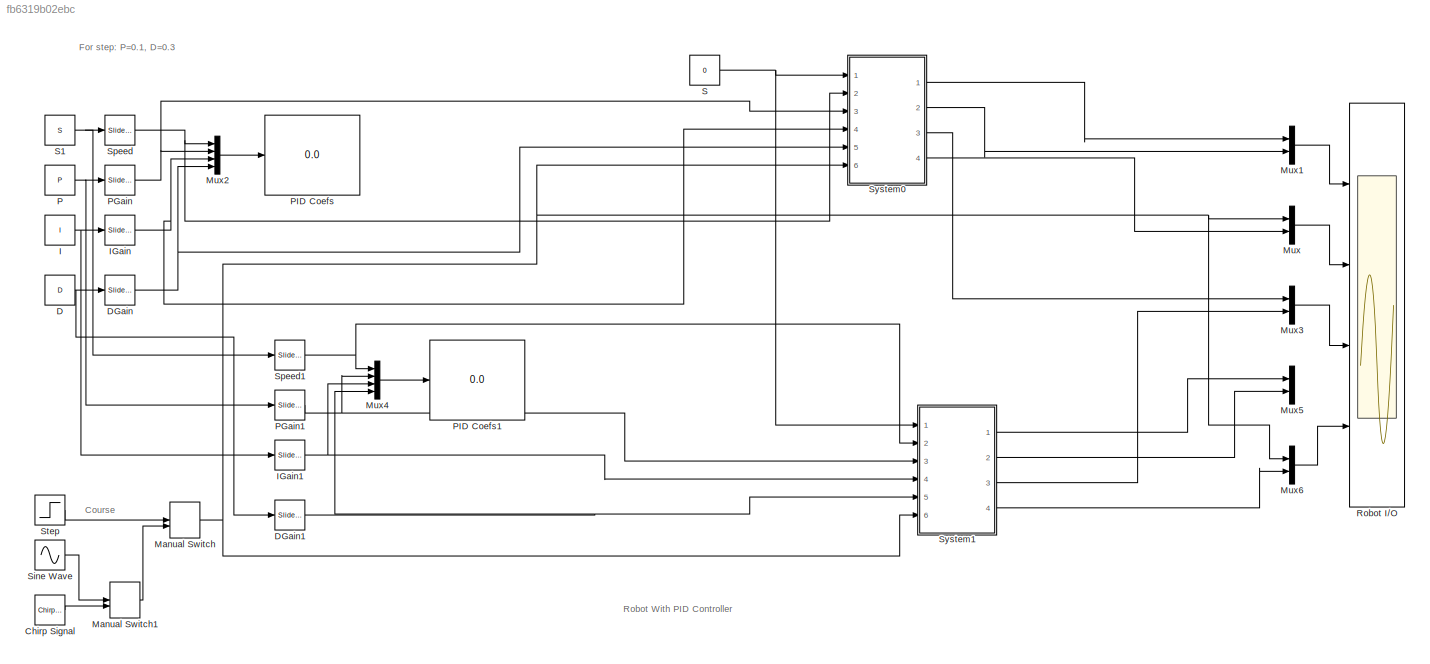
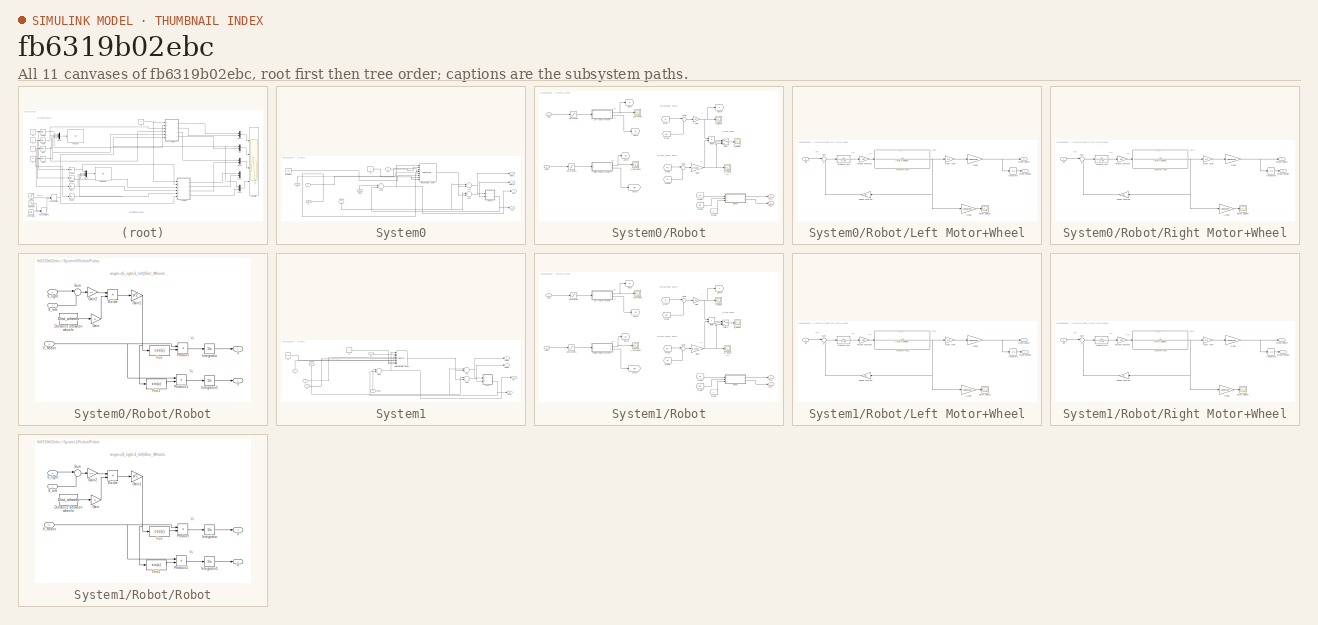
[diagram: thumbnail index - all 11 canvases of the model, root first then tree order]
MODEL slx_fb6319b02ebc
KIND model
CONFIG AbsTol = auto
CONFIG EnableMultiTasking = on
CONFIG FixedStep = auto
CONFIG InitFcn = S = 1\nP = 1\nI = 1\nD = 1
CONFIG MaxStep = auto
CONFIG MinStep = auto
CONFIG RelTol = 1e-3
CONFIG SampleTimeConstraint = Unconstrained
CONFIG Solver = ode45
CONFIG SolverName = ode45
CONFIG StartTime = 0.0
CONFIG StopTime = 5
BLOCK [Reference] Chirp Signal  REF=simulink/Sources/Chirp Signal
  Ports = [0, 1]
  SourceBlock = simulink/Sources/Chirp Signal
  SourceProductBaseCode = SL
  SourceProductName = Simulink
  SourceType = chirp
BLOCK [Constant] D
  Value = D
BLOCK [Reference] DGain  REF=simulink/Math
Operations/Slider
Gain
  Ports = [1, 1]
  SourceBlock = simulink/Math\nOperations/Slider\nGain
  SourceProductBaseCode = SL
  SourceProductName = Simulink
  SourceType = Slider Gain
BLOCK [Reference] DGain1  REF=simulink/Math
Operations/Slider
Gain
  Ports = [1, 1]
  SourceBlock = simulink/Math\nOperations/Slider\nGain
  SourceProductBaseCode = SL
  SourceProductName = Simulink
  SourceType = Slider Gain
BLOCK [Constant] I
  Value = I
BLOCK [Reference] IGain  REF=simulink/Math
Operations/Slider
Gain
  Ports = [1, 1]
  SourceBlock = simulink/Math\nOperations/Slider\nGain
  SourceProductBaseCode = SL
  SourceProductName = Simulink
  SourceType = Slider Gain
BLOCK [Reference] IGain1  REF=simulink/Math
Operations/Slider
Gain
  Ports = [1, 1]
  SourceBlock = simulink/Math\nOperations/Slider\nGain
  SourceProductBaseCode = SL
  SourceProductName = Simulink
  SourceType = Slider Gain
BLOCK [ManualSwitch] Manual Switch
BLOCK [ManualSwitch] Manual Switch1
BLOCK [Mux] Mux
  DisplayOption = bar
  Inputs = 2
  Ports = [2, 1]
BLOCK [Mux] Mux1
  DisplayOption = bar
  Inputs = 2
  Ports = [2, 1]
BLOCK [Mux] Mux2
  DisplayOption = bar
  Ports = [4, 1]
BLOCK [Mux] Mux3
  DisplayOption = bar
  Inputs = 2
  Ports = [2, 1]
BLOCK [Mux] Mux4
  DisplayOption = bar
  Ports = [4, 1]
BLOCK [Mux] Mux5
  DisplayOption = bar
  Inputs = 2
  Ports = [2, 1]
BLOCK [Mux] Mux6
  DisplayOption = bar
  Inputs = 2
  Ports = [2, 1]
BLOCK [Constant] P
  Value = P
BLOCK [Reference] PGain  REF=simulink/Math
Operations/Slider
Gain
  Ports = [1, 1]
  SourceBlock = simulink/Math\nOperations/Slider\nGain
  SourceProductBaseCode = SL
  SourceProductName = Simulink
  SourceType = Slider Gain
BLOCK [Reference] PGain1  REF=simulink/Math
Operations/Slider
Gain
  Ports = [1, 1]
  SourceBlock = simulink/Math\nOperations/Slider\nGain
  SourceProductBaseCode = SL
  SourceProductName = Simulink
  SourceType = Slider Gain
BLOCK [Display] PID Coefs
  Decimation = 1
  Ports = [1]
BLOCK [Display] PID Coefs1
  Decimation = 1
  Ports = [1]
BLOCK [Scope] Robot I//O
  NumInputPorts = 4
  Ports = [4]
  ScopeSpecificationString = Simulink.scopes.TimeScopeBlockCfg('CurrentConfiguration', extmgr.ConfigurationSet(extmgr.Configuration('Core','General UI',true),extmgr.Configuration('Core','Source UI',true),extmgr.Configuration('Sources','WiredSimulink',true,'DataLoggingVariableName','ScopeData6','DataLoggingMaxPoints','500000','DataLoggingLimitDataPoints',true,'DataLoggingSaveFormat','Array','DataLoggingDecimation','1','DataLog...<+3812ch>
BLOCK [Constant] S
  Value = 0
BLOCK [Constant] S1
  Value = S
BLOCK [Sin] Sine Wave
  Amplitude = .4
  Frequency = 2
  Ports = [0, 1]
  SampleTime = 0
BLOCK [Reference] Speed  REF=simulink/Math
Operations/Slider
Gain
  Ports = [1, 1]
  SourceBlock = simulink/Math\nOperations/Slider\nGain
  SourceProductBaseCode = SL
  SourceProductName = Simulink
  SourceType = Slider Gain
BLOCK [Reference] Speed1  REF=simulink/Math
Operations/Slider
Gain
  Ports = [1, 1]
  SourceBlock = simulink/Math\nOperations/Slider\nGain
  SourceProductBaseCode = SL
  SourceProductName = Simulink
  SourceType = Slider Gain
BLOCK [Step] Step
  After = .5
  SampleTime = 0
BLOCK [SubSystem] System0
  Ports = [6, 4]
  RequestExecContextInheritance = off
  Variant = off
BLOCK [Sum] System0/Add
  InputSameDT = off
  Inputs = +-
  OutDataTypeStr = Inherit: Inherit via internal rule
  Ports = [2, 1]
  SaturateOnIntegerOverflow = off
BLOCK [Sum] System0/Add1
  InputSameDT = off
  OutDataTypeStr = Inherit: Inherit via internal rule
  Ports = [2, 1]
  SaturateOnIntegerOverflow = off
BLOCK [Sum] System0/Add2
  InputSameDT = off
  Inputs = +-
  OutDataTypeStr = Inherit: Inherit via internal rule
  Ports = [2, 1]
  SaturateOnIntegerOverflow = off
BLOCK [Constant] System0/Constant
  Value = 100
BLOCK [Inport] System0/D
  IconDisplay = Port number
  Port = 5
BLOCK [Outport] System0/Err
  IconDisplay = Port number
  Port = 3
BLOCK [Inport] System0/I
  IconDisplay = Port number
  Port = 4
BLOCK [Inport] System0/In1
  IconDisplay = Port number
BLOCK [Outport] System0/MotorL
  IconDisplay = Port number
BLOCK [Outport] System0/MotorR
  IconDisplay = Port number
  Port = 2
BLOCK [Inport] System0/P
  IconDisplay = Port number
  Port = 3
BLOCK [Reference] System0/PID Controller (2DOF)  REF=simulink/Continuous/PID Controller (2DOF)
  Ports = [8, 1]
  SourceBlock = simulink/Continuous/PID Controller (2DOF)
  SourceProductBaseCode = SL
  SourceProductName = Simulink
  SourceType = PID 2dof
BLOCK [Outport] System0/Pos
  IconDisplay = Port number
  Port = 4
BLOCK [Inport] System0/Road
  IconDisplay = Port number
  Port = 6
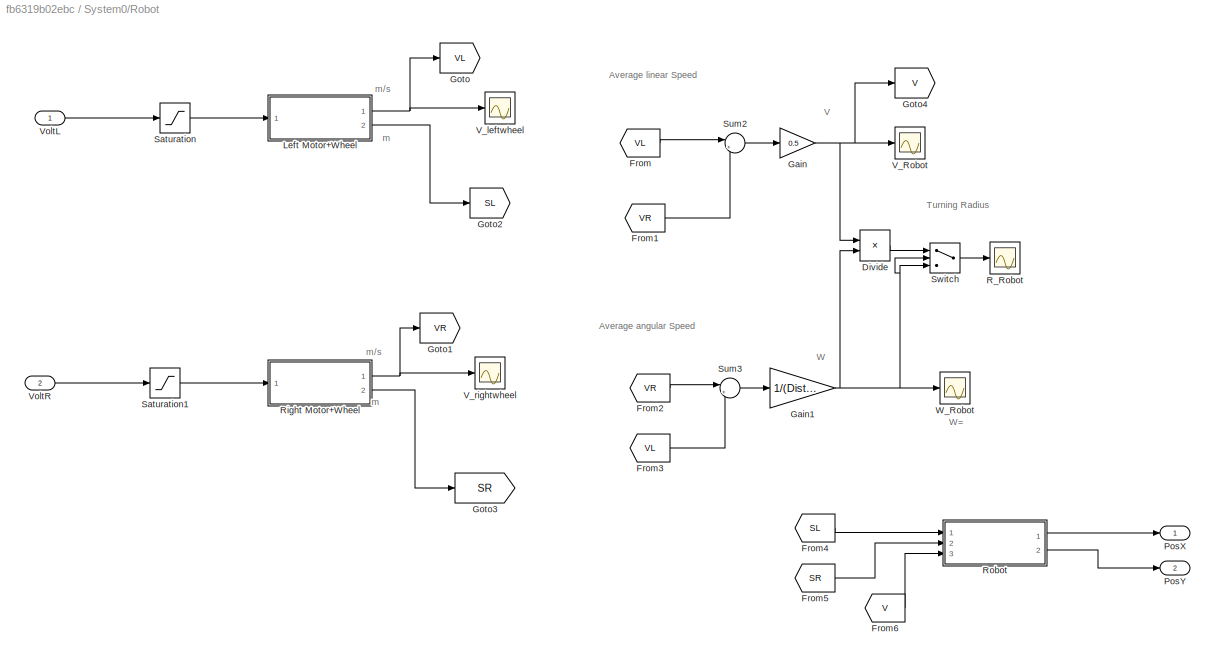
BLOCK [SubSystem] System0/Robot
  Ports = [2, 2]
  RequestExecContextInheritance = off
  Variant = off
BLOCK [Product] System0/Robot/Divide
  InputSameDT = off
  Inputs = */
  OutDataTypeStr = Inherit: Inherit via internal rule
  Ports = [2, 1]
  RndMeth = Floor
BLOCK [From] System0/Robot/From
  CloseFcn = tagdialog Close
  GotoTag = VL
BLOCK [From] System0/Robot/From1
  CloseFcn = tagdialog Close
  GotoTag = VR
BLOCK [From] System0/Robot/From2
  CloseFcn = tagdialog Close
  GotoTag = VR
BLOCK [From] System0/Robot/From3
  CloseFcn = tagdialog Close
  GotoTag = VL
BLOCK [From] System0/Robot/From4
  CloseFcn = tagdialog Close
  GotoTag = SL
BLOCK [From] System0/Robot/From5
  CloseFcn = tagdialog Close
  GotoTag = SR
BLOCK [From] System0/Robot/From6
  CloseFcn = tagdialog Close
  GotoTag = V
BLOCK [Gain] System0/Robot/Gain
  Gain = 0.5
  OutDataTypeStr = Inherit: Inherit via internal rule
  ParamDataTypeStr = Inherit: Inherit via internal rule
  SaturateOnIntegerOverflow = off
BLOCK [Gain] System0/Robot/Gain1
  Gain = 1/(Dist_wheels)
  OutDataTypeStr = Inherit: Inherit via internal rule
  ParamDataTypeStr = Inherit: Inherit via internal rule
  SaturateOnIntegerOverflow = off
BLOCK [Goto] System0/Robot/Goto
  GotoTag = VL
BLOCK [Goto] System0/Robot/Goto1
  GotoTag = VR
BLOCK [Goto] System0/Robot/Goto2
  GotoTag = SL
BLOCK [Goto] System0/Robot/Goto3
  GotoTag = SR
BLOCK [Goto] System0/Robot/Goto4
  GotoTag = V
BLOCK [SubSystem] System0/Robot/Left Motor+Wheel
  Ports = [1, 2]
  RequestExecContextInheritance = off
  Variant = off
BLOCK [Gain] System0/Robot/Left Motor+Wheel/Gain5
  Gain = rads2mps
  OutDataTypeStr = Inherit: Inherit via internal rule
  ParamDataTypeStr = Inherit: Inherit via internal rule
  SaturateOnIntegerOverflow = off
BLOCK [Gain] System0/Robot/Left Motor+Wheel/Gain6
  Gain = rads2rpm
  OutDataTypeStr = Inherit: Inherit via internal rule
  ParamDataTypeStr = Inherit: Inherit via internal rule
  SaturateOnIntegerOverflow = off
BLOCK [Gain] System0/Robot/Left Motor+Wheel/Gear ratio
  Gain = 1/n
  OutDataTypeStr = Inherit: Inherit via internal rule
  ParamDataTypeStr = Inherit: Inherit via internal rule
  SaturateOnIntegerOverflow = off
BLOCK [Integrator] System0/Robot/Left Motor+Wheel/Integrator
  Ports = [1, 1]
BLOCK [Scope] System0/Robot/Left Motor+Wheel/Rotor_Velocity
  NumInputPorts = 1
  Ports = [1]
  ScopeSpecificationString = C++SS(StrPVP('Location','[1, 50, 1281, 769]'),StrPVP('Open','off'),StrPVP('ZoomMode','xonly'),MxPVP('AxesTitles',53,'struct(''axes1'',''%<SignalLabel>'')'),StrPVP('TimeRange','1'),StrPVP('YMin','0.0025'),StrPVP('YMax','0.0225'),StrPVP('DataFormat','StructureWithTime'),StrPVP('LimitDataPoints','off'),StrPVP('BlockParamSampleTime','0'),StrPVP('Decimation','1'),StrPVP('BlockParamSampleInput','off'))  <repeated x4 — deduplicated; at blocks: Rotor_Velocity>
BLOCK [Gain] System0/Robot/Left Motor+Wheel/Speed constant
  Gain = Ke
  OutDataTypeStr = Inherit: Inherit via internal rule
  ParamDataTypeStr = Inherit: Inherit via internal rule
  SaturateOnIntegerOverflow = off
BLOCK [Sum] System0/Robot/Left Motor+Wheel/Sum
  IconShape = round
  InputSameDT = off
  Inputs = |+-
  OutDataTypeStr = Inherit: Inherit via internal rule
  Ports = [2, 1]
  SaturateOnIntegerOverflow = off
BLOCK [Gain] System0/Robot/Left Motor+Wheel/Torque constant
  Gain = Km
  OutDataTypeStr = Inherit: Inherit via internal rule
  ParamDataTypeStr = Inherit: Inherit via internal rule
  SaturateOnIntegerOverflow = off
BLOCK [TransferFcn] System0/Robot/Left Motor+Wheel/Transfer Fcn
  Denominator = [L R]
BLOCK [TransferFcn] System0/Robot/Left Motor+Wheel/Transfer Fcn1
  Denominator = [Jrot+(Jwheel/(ro*n*n)) Brot+Bwheel/(ro*n*n)]
BLOCK [Inport] System0/Robot/Left Motor+Wheel/Uin
  IconDisplay = Port number
BLOCK [Outport] System0/Robot/Left Motor+Wheel/Wheel Position
  IconDisplay = Port number
  Port = 2
BLOCK [Outport] System0/Robot/Left Motor+Wheel/Wheel Velocity
  IconDisplay = Port number
BLOCK [Outport] System0/Robot/PosX
  IconDisplay = Port number
BLOCK [Outport] System0/Robot/PosY
  IconDisplay = Port number
  Port = 2
BLOCK [Scope] System0/Robot/R_Robot
  Commented = on
  NumInputPorts = 1
  Ports = [1]
  ScopeSpecificationString = C++SS(StrPVP('Location','[11, 69, 1285, 783]'),StrPVP('Open','off'),StrPVP('ZoomMode','xonly'),MxPVP('AxesTitles',53,'struct(''axes1'',''%<SignalLabel>'')'),MxPVP('ScopeGraphics',56,'struct(''FigureColor'',''[0.5 0.5 0.5]'',''AxesColor'',''[0 0 0]'',''AxesTickColor'',''[1 1 1]'',''LineColors'',''[1 1 0;1 0 1;0 1 1;1 0 0;0 1 0;0 0 1]'',''LineStyles'',''-|-|-|-|-|-'',''LineWidths'',''[0.5 0.5 0.5 0....<+340ch>
BLOCK [SubSystem] System0/Robot/Right Motor+Wheel
  Ports = [1, 2]
  RequestExecContextInheritance = off
  Variant = off
BLOCK [Gain] System0/Robot/Right Motor+Wheel/Gain5
  Gain = rads2mps
  OutDataTypeStr = Inherit: Inherit via internal rule
  ParamDataTypeStr = Inherit: Inherit via internal rule
  SaturateOnIntegerOverflow = off
BLOCK [Gain] System0/Robot/Right Motor+Wheel/Gain6
  Gain = rads2rpm
  OutDataTypeStr = Inherit: Inherit via internal rule
  ParamDataTypeStr = Inherit: Inherit via internal rule
  SaturateOnIntegerOverflow = off
BLOCK [Gain] System0/Robot/Right Motor+Wheel/Gear ratio
  Gain = 1/n
  OutDataTypeStr = Inherit: Inherit via internal rule
  ParamDataTypeStr = Inherit: Inherit via internal rule
  SaturateOnIntegerOverflow = off
BLOCK [Integrator] System0/Robot/Right Motor+Wheel/Integrator
  Ports = [1, 1]
BLOCK [Scope] System0/Robot/Right Motor+Wheel/Rotor_Velocity
  NumInputPorts = 1
  Ports = [1]
BLOCK [Gain] System0/Robot/Right Motor+Wheel/Speed constant
  Gain = Ke
  OutDataTypeStr = Inherit: Inherit via internal rule
  ParamDataTypeStr = Inherit: Inherit via internal rule
  SaturateOnIntegerOverflow = off
BLOCK [Sum] System0/Robot/Right Motor+Wheel/Sum
  IconShape = round
  InputSameDT = off
  Inputs = |+-
  OutDataTypeStr = Inherit: Inherit via internal rule
  Ports = [2, 1]
  SaturateOnIntegerOverflow = off
BLOCK [Gain] System0/Robot/Right Motor+Wheel/Torque constant
  Gain = Km
  OutDataTypeStr = Inherit: Inherit via internal rule
  ParamDataTypeStr = Inherit: Inherit via internal rule
  SaturateOnIntegerOverflow = off
BLOCK [TransferFcn] System0/Robot/Right Motor+Wheel/Transfer Fcn
  Denominator = [L R]
BLOCK [TransferFcn] System0/Robot/Right Motor+Wheel/Transfer Fcn1
  Denominator = [Jrot+(Jwheel/(ro*n*n)) Brot+Bwheel/(ro*n*n)]
BLOCK [Inport] System0/Robot/Right Motor+Wheel/Uin
  IconDisplay = Port number
BLOCK [Outport] System0/Robot/Right Motor+Wheel/Wheel Position
  IconDisplay = Port number
  Port = 2
BLOCK [Outport] System0/Robot/Right Motor+Wheel/Wheel Velocity
  IconDisplay = Port number
BLOCK [SubSystem] System0/Robot/Robot
  Ports = [3, 2]
  RequestExecContextInheritance = off
  Variant = off
BLOCK [Constant] System0/Robot/Robot/Distance between wheels
  Value = Dist_wheels
BLOCK [Product] System0/Robot/Robot/Divide
  InputSameDT = off
  Inputs = */
  OutDataTypeStr = Inherit: Inherit via internal rule
  Ports = [2, 1]
  RndMeth = Floor
  SaturateOnIntegerOverflow = off
BLOCK [Fcn] System0/Robot/Robot/Fcn
  Expr = cos(u)
BLOCK [Fcn] System0/Robot/Robot/Fcn1
  Expr = sin(u)
BLOCK [Gain] System0/Robot/Robot/Gain
  Gain = pi
  OutDataTypeStr = Inherit: Inherit via internal rule
  ParamDataTypeStr = Inherit: Inherit via internal rule
  SaturateOnIntegerOverflow = off
BLOCK [Gain] System0/Robot/Robot/Gain1
  Gain = pi*2
  OutDataTypeStr = Inherit: Inherit via internal rule
  ParamDataTypeStr = Inherit: Inherit via internal rule
  SaturateOnIntegerOverflow = off
BLOCK [Gain] System0/Robot/Robot/Gain2
  Gain = 1/2
  OutDataTypeStr = Inherit: Inherit via internal rule
  ParamDataTypeStr = Inherit: Inherit via internal rule
  SaturateOnIntegerOverflow = off
BLOCK [Integrator] System0/Robot/Robot/Integrator
  Ports = [1, 1]
BLOCK [Integrator] System0/Robot/Robot/Integrator1
  Ports = [1, 1]
BLOCK [Product] System0/Robot/Robot/Product
  InputSameDT = off
  OutDataTypeStr = Inherit: Inherit via internal rule
  Ports = [2, 1]
  SaturateOnIntegerOverflow = off
BLOCK [Product] System0/Robot/Robot/Product1
  InputSameDT = off
  OutDataTypeStr = Inherit: Inherit via internal rule
  Ports = [2, 1]
  SaturateOnIntegerOverflow = off
BLOCK [Inport] System0/Robot/Robot/S_left
  IconDisplay = Port number
BLOCK [Inport] System0/Robot/Robot/S_right
  IconDisplay = Port number
  Port = 2
BLOCK [Sum] System0/Robot/Robot/Sum
  IconShape = round
  InputSameDT = off
  Inputs = |+-
  OutDataTypeStr = Inherit: Inherit via internal rule
  Ports = [2, 1]
  SaturateOnIntegerOverflow = off
BLOCK [Inport] System0/Robot/Robot/V_Robot
  IconDisplay = Port number
  Port = 3
BLOCK [Outport] System0/Robot/Robot/X
  IconDisplay = Port number
BLOCK [Outport] System0/Robot/Robot/Y
  IconDisplay = Port number
  Port = 2
BLOCK [Saturate] System0/Robot/Saturation
  InputPortMap = u0
  LowerLimit = -11.1
  Ports = [1, 1]
  UpperLimit = 11.1
BLOCK [Saturate] System0/Robot/Saturation1
  InputPortMap = u0
  LowerLimit = -11.1
  Ports = [1, 1]
  UpperLimit = 11.1
BLOCK [Sum] System0/Robot/Sum2
  IconShape = round
  InputSameDT = off
  Inputs = |++
  OutDataTypeStr = Inherit: Inherit via internal rule
  Ports = [2, 1]
  SaturateOnIntegerOverflow = off
BLOCK [Sum] System0/Robot/Sum3
  IconShape = round
  InputSameDT = off
  Inputs = |+-
  OutDataTypeStr = Inherit: Inherit via internal rule
  Ports = [2, 1]
  SaturateOnIntegerOverflow = off
BLOCK [Switch] System0/Robot/Switch
  Criteria = u2 ~= 0
  InputSameDT = off
  SaturateOnIntegerOverflow = off
BLOCK [Scope] System0/Robot/V_Robot
  NumInputPorts = 1
  Ports = [1]
  ScopeSpecificationString = C++SS(StrPVP('Location','[43, 89, 1317, 661]'),StrPVP('Open','off'),StrPVP('ZoomMode','xonly'),MxPVP('AxesTitles',53,'struct(''axes1'',''%<SignalLabel>'')'),MxPVP('ScopeGraphics',56,'struct(''FigureColor'',''[0.5 0.5 0.5]'',''AxesColor'',''[0 0 0]'',''AxesTickColor'',''[1 1 1]'',''LineColors'',''[1 1 0;1 0 1;0 1 1;1 0 0;0 1 0;0 0 1]'',''LineStyles'',''-|-|-|-|-|-'',''LineWidths'',''[0.5 0.5 0.5 0....<+343ch>
BLOCK [Scope] System0/Robot/V_leftwheel
  Commented = on
  NumInputPorts = 1
  Ports = [1]
  ScopeSpecificationString = C++SS(StrPVP('Location','[11, 69, 1289, 783]'),StrPVP('Open','off'),StrPVP('ZoomMode','xonly'),MxPVP('AxesTitles',53,'struct(''axes1'',''%<SignalLabel>'')'),MxPVP('ScopeGraphics',56,'struct(''FigureColor'',''[0.5 0.5 0.5]'',''AxesColor'',''[0 0 0]'',''AxesTickColor'',''[1 1 1]'',''LineColors'',''[1 1 0;1 0 1;0 1 1;1 0 0;0 1 0;0 0 1]'',''LineStyles'',''-|-|-|-|-|-'',''LineWidths'',''[0.5 0.5 0.5 0....<+344ch>
BLOCK [Scope] System0/Robot/V_rightwheel
  Commented = on
  NumInputPorts = 1
  Ports = [1]
  ScopeSpecificationString = C++SS(StrPVP('Location','[11, 69, 1289, 783]'),StrPVP('Open','off'),StrPVP('ZoomMode','yonly'),MxPVP('AxesTitles',53,'struct(''axes1'',''%<SignalLabel>'')'),MxPVP('ScopeGraphics',56,'struct(''FigureColor'',''[0.5 0.5 0.5]'',''AxesColor'',''[0 0 0]'',''AxesTickColor'',''[1 1 1]'',''LineColors'',''[1 1 0;1 0 1;0 1 1;1 0 0;0 1 0;0 0 1]'',''LineStyles'',''-|-|-|-|-|-'',''LineWidths'',''[0.5 0.5 0.5 0....<+344ch>
BLOCK [Inport] System0/Robot/VoltL
  IconDisplay = Port number
BLOCK [Inport] System0/Robot/VoltR
  IconDisplay = Port number
  Port = 2
BLOCK [Scope] System0/Robot/W_Robot
  Commented = on
  NumInputPorts = 1
  Ports = [1]
  ScopeSpecificationString = C++SS(StrPVP('Location','[5, 80, 1279, 794]'),StrPVP('Open','off'),StrPVP('ZoomMode','xonly'),MxPVP('AxesTitles',53,'struct(''axes1'',''%<SignalLabel>'')'),StrPVP('TimeRange','1'),StrPVP('YMin','6.35911'),StrPVP('YMax','6.35915'),StrPVP('SaveName','ScopeData4'),StrPVP('DataFormat','StructureWithTime'),StrPVP('LimitDataPoints','off'),StrPVP('BlockParamSampleTime','0'),StrPVP('Decimation','1'),StrPV...<+33ch>
BLOCK [Constant] System0/S1
BLOCK [Inport] System0/Speed
  IconDisplay = Port number
  Port = 2
BLOCK [SubSystem] System1
  Ports = [6, 4]
  RequestExecContextInheritance = off
  Variant = off
BLOCK [Sum] System1/Add
  InputSameDT = off
  Inputs = +-
  OutDataTypeStr = Inherit: Inherit via internal rule
  Ports = [2, 1]
  SaturateOnIntegerOverflow = off
BLOCK [Sum] System1/Add1
  InputSameDT = off
  OutDataTypeStr = Inherit: Inherit via internal rule
  Ports = [2, 1]
  SaturateOnIntegerOverflow = off
BLOCK [Sum] System1/Add2
  InputSameDT = off
  Inputs = +-
  OutDataTypeStr = Inherit: Inherit via internal rule
  Ports = [2, 1]
  SaturateOnIntegerOverflow = off
BLOCK [Inport] System1/D
  IconDisplay = Port number
  Port = 5
BLOCK [Outport] System1/Err
  IconDisplay = Port number
  Port = 3
BLOCK [Inport] System1/I
  IconDisplay = Port number
  Port = 4
BLOCK [Inport] System1/In1
  IconDisplay = Port number
BLOCK [Outport] System1/LMotor
  IconDisplay = Port number
BLOCK [Inport] System1/P
  IconDisplay = Port number
  Port = 3
BLOCK [Reference] System1/PID Controller (2DOF)  REF=simulink/Continuous/PID Controller (2DOF)
  Ports = [8, 1]
  SourceBlock = simulink/Continuous/PID Controller (2DOF)
  SourceProductBaseCode = SL
  SourceProductName = Simulink
  SourceType = PID 2dof
BLOCK [Outport] System1/Pos
  IconDisplay = Port number
  Port = 4
BLOCK [Outport] System1/RMotor
  IconDisplay = Port number
  Port = 2
BLOCK [Inport] System1/Road
  IconDisplay = Port number
  Port = 6
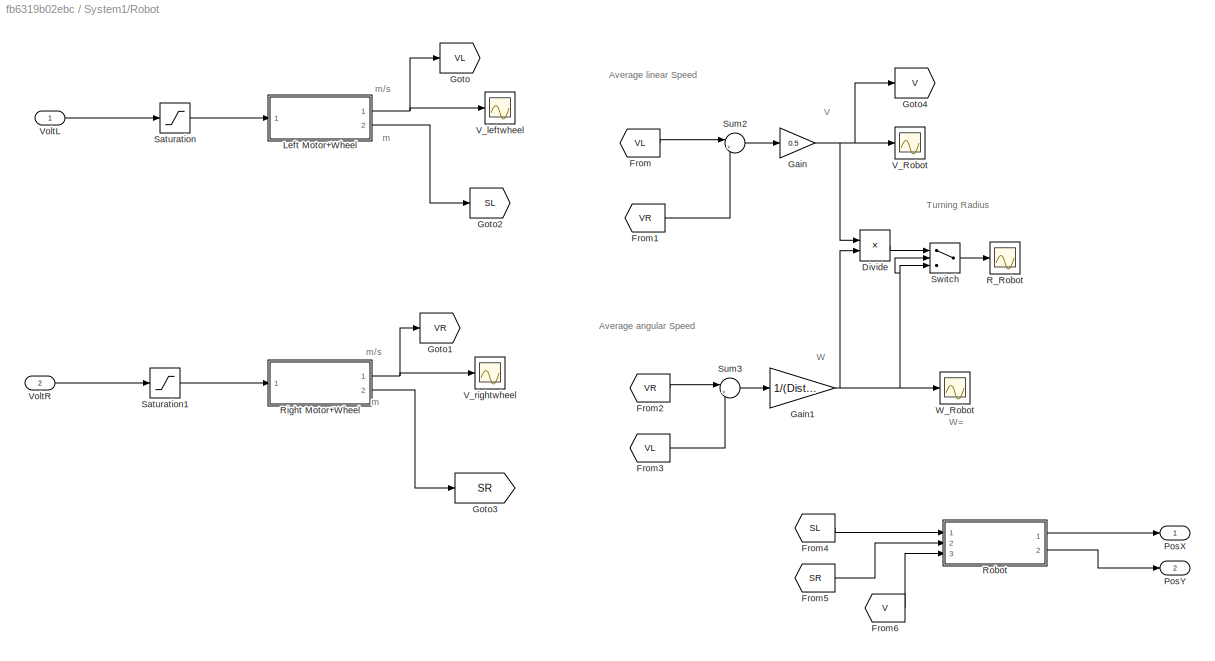
BLOCK [SubSystem] System1/Robot
  Ports = [2, 2]
  RequestExecContextInheritance = off
  Variant = off
BLOCK [Product] System1/Robot/Divide
  InputSameDT = off
  Inputs = */
  OutDataTypeStr = Inherit: Inherit via internal rule
  Ports = [2, 1]
  RndMeth = Floor
BLOCK [From] System1/Robot/From
  CloseFcn = tagdialog Close
  GotoTag = VL
BLOCK [From] System1/Robot/From1
  CloseFcn = tagdialog Close
  GotoTag = VR
BLOCK [From] System1/Robot/From2
  CloseFcn = tagdialog Close
  GotoTag = VR
BLOCK [From] System1/Robot/From3
  CloseFcn = tagdialog Close
  GotoTag = VL
BLOCK [From] System1/Robot/From4
  CloseFcn = tagdialog Close
  GotoTag = SL
BLOCK [From] System1/Robot/From5
  CloseFcn = tagdialog Close
  GotoTag = SR
BLOCK [From] System1/Robot/From6
  CloseFcn = tagdialog Close
  GotoTag = V
BLOCK [Gain] System1/Robot/Gain
  Gain = 0.5
  OutDataTypeStr = Inherit: Inherit via internal rule
  ParamDataTypeStr = Inherit: Inherit via internal rule
  SaturateOnIntegerOverflow = off
BLOCK [Gain] System1/Robot/Gain1
  Gain = 1/(Dist_wheels)
  OutDataTypeStr = Inherit: Inherit via internal rule
  ParamDataTypeStr = Inherit: Inherit via internal rule
  SaturateOnIntegerOverflow = off
BLOCK [Goto] System1/Robot/Goto
  GotoTag = VL
BLOCK [Goto] System1/Robot/Goto1
  GotoTag = VR
BLOCK [Goto] System1/Robot/Goto2
  GotoTag = SL
BLOCK [Goto] System1/Robot/Goto3
  GotoTag = SR
BLOCK [Goto] System1/Robot/Goto4
  GotoTag = V
BLOCK [SubSystem] System1/Robot/Left Motor+Wheel
  Ports = [1, 2]
  RequestExecContextInheritance = off
  Variant = off
BLOCK [Gain] System1/Robot/Left Motor+Wheel/Gain5
  Gain = rads2mps
  OutDataTypeStr = Inherit: Inherit via internal rule
  ParamDataTypeStr = Inherit: Inherit via internal rule
  SaturateOnIntegerOverflow = off
BLOCK [Gain] System1/Robot/Left Motor+Wheel/Gain6
  Gain = rads2rpm
  OutDataTypeStr = Inherit: Inherit via internal rule
  ParamDataTypeStr = Inherit: Inherit via internal rule
  SaturateOnIntegerOverflow = off
BLOCK [Gain] System1/Robot/Left Motor+Wheel/Gear ratio
  Gain = 1/n
  OutDataTypeStr = Inherit: Inherit via internal rule
  ParamDataTypeStr = Inherit: Inherit via internal rule
  SaturateOnIntegerOverflow = off
BLOCK [Integrator] System1/Robot/Left Motor+Wheel/Integrator
  Ports = [1, 1]
BLOCK [Scope] System1/Robot/Left Motor+Wheel/Rotor_Velocity
  NumInputPorts = 1
  Ports = [1]
BLOCK [Gain] System1/Robot/Left Motor+Wheel/Speed constant
  Gain = Ke
  OutDataTypeStr = Inherit: Inherit via internal rule
  ParamDataTypeStr = Inherit: Inherit via internal rule
  SaturateOnIntegerOverflow = off
BLOCK [Sum] System1/Robot/Left Motor+Wheel/Sum
  IconShape = round
  InputSameDT = off
  Inputs = |+-
  OutDataTypeStr = Inherit: Inherit via internal rule
  Ports = [2, 1]
  SaturateOnIntegerOverflow = off
BLOCK [Gain] System1/Robot/Left Motor+Wheel/Torque constant
  Gain = Km
  OutDataTypeStr = Inherit: Inherit via internal rule
  ParamDataTypeStr = Inherit: Inherit via internal rule
  SaturateOnIntegerOverflow = off
BLOCK [TransferFcn] System1/Robot/Left Motor+Wheel/Transfer Fcn
  Denominator = [L R]
BLOCK [TransferFcn] System1/Robot/Left Motor+Wheel/Transfer Fcn1
  Denominator = [Jrot+(Jwheel/(ro*n*n)) Brot+Bwheel/(ro*n*n)]
BLOCK [Inport] System1/Robot/Left Motor+Wheel/Uin
  IconDisplay = Port number
BLOCK [Outport] System1/Robot/Left Motor+Wheel/Wheel Position
  IconDisplay = Port number
  Port = 2
BLOCK [Outport] System1/Robot/Left Motor+Wheel/Wheel Velocity
  IconDisplay = Port number
BLOCK [Outport] System1/Robot/PosX
  IconDisplay = Port number
BLOCK [Outport] System1/Robot/PosY
  IconDisplay = Port number
  Port = 2
BLOCK [Scope] System1/Robot/R_Robot
  Commented = on
  NumInputPorts = 1
  Ports = [1]
  ScopeSpecificationString = C++SS(StrPVP('Location','[11, 69, 1285, 783]'),StrPVP('Open','off'),StrPVP('ZoomMode','xonly'),MxPVP('AxesTitles',53,'struct(''axes1'',''%<SignalLabel>'')'),MxPVP('ScopeGraphics',56,'struct(''FigureColor'',''[0.5 0.5 0.5]'',''AxesColor'',''[0 0 0]'',''AxesTickColor'',''[1 1 1]'',''LineColors'',''[1 1 0;1 0 1;0 1 1;1 0 0;0 1 0;0 0 1]'',''LineStyles'',''-|-|-|-|-|-'',''LineWidths'',''[0.5 0.5 0.5 0....<+340ch>
BLOCK [SubSystem] System1/Robot/Right Motor+Wheel
  Ports = [1, 2]
  RequestExecContextInheritance = off
  Variant = off
BLOCK [Gain] System1/Robot/Right Motor+Wheel/Gain5
  Gain = rads2mps
  OutDataTypeStr = Inherit: Inherit via internal rule
  ParamDataTypeStr = Inherit: Inherit via internal rule
  SaturateOnIntegerOverflow = off
BLOCK [Gain] System1/Robot/Right Motor+Wheel/Gain6
  Gain = rads2rpm
  OutDataTypeStr = Inherit: Inherit via internal rule
  ParamDataTypeStr = Inherit: Inherit via internal rule
  SaturateOnIntegerOverflow = off
BLOCK [Gain] System1/Robot/Right Motor+Wheel/Gear ratio
  Gain = 1/n
  OutDataTypeStr = Inherit: Inherit via internal rule
  ParamDataTypeStr = Inherit: Inherit via internal rule
  SaturateOnIntegerOverflow = off
BLOCK [Integrator] System1/Robot/Right Motor+Wheel/Integrator
  Ports = [1, 1]
BLOCK [Scope] System1/Robot/Right Motor+Wheel/Rotor_Velocity
  NumInputPorts = 1
  Ports = [1]
BLOCK [Gain] System1/Robot/Right Motor+Wheel/Speed constant
  Gain = Ke
  OutDataTypeStr = Inherit: Inherit via internal rule
  ParamDataTypeStr = Inherit: Inherit via internal rule
  SaturateOnIntegerOverflow = off
BLOCK [Sum] System1/Robot/Right Motor+Wheel/Sum
  IconShape = round
  InputSameDT = off
  Inputs = |+-
  OutDataTypeStr = Inherit: Inherit via internal rule
  Ports = [2, 1]
  SaturateOnIntegerOverflow = off
BLOCK [Gain] System1/Robot/Right Motor+Wheel/Torque constant
  Gain = Km
  OutDataTypeStr = Inherit: Inherit via internal rule
  ParamDataTypeStr = Inherit: Inherit via internal rule
  SaturateOnIntegerOverflow = off
BLOCK [TransferFcn] System1/Robot/Right Motor+Wheel/Transfer Fcn
  Denominator = [L R]
BLOCK [TransferFcn] System1/Robot/Right Motor+Wheel/Transfer Fcn1
  Denominator = [Jrot+(Jwheel/(ro*n*n)) Brot+Bwheel/(ro*n*n)]
BLOCK [Inport] System1/Robot/Right Motor+Wheel/Uin
  IconDisplay = Port number
BLOCK [Outport] System1/Robot/Right Motor+Wheel/Wheel Position
  IconDisplay = Port number
  Port = 2
BLOCK [Outport] System1/Robot/Right Motor+Wheel/Wheel Velocity
  IconDisplay = Port number
BLOCK [SubSystem] System1/Robot/Robot
  Ports = [3, 2]
  RequestExecContextInheritance = off
  Variant = off
BLOCK [Constant] System1/Robot/Robot/Distance between wheels
  Value = Dist_wheels
BLOCK [Product] System1/Robot/Robot/Divide
  InputSameDT = off
  Inputs = */
  OutDataTypeStr = Inherit: Inherit via internal rule
  Ports = [2, 1]
  RndMeth = Floor
  SaturateOnIntegerOverflow = off
BLOCK [Fcn] System1/Robot/Robot/Fcn
  Expr = cos(u)
BLOCK [Fcn] System1/Robot/Robot/Fcn1
  Expr = sin(u)
BLOCK [Gain] System1/Robot/Robot/Gain
  Gain = pi
  OutDataTypeStr = Inherit: Inherit via internal rule
  ParamDataTypeStr = Inherit: Inherit via internal rule
  SaturateOnIntegerOverflow = off
BLOCK [Gain] System1/Robot/Robot/Gain1
  Gain = pi*2
  OutDataTypeStr = Inherit: Inherit via internal rule
  ParamDataTypeStr = Inherit: Inherit via internal rule
  SaturateOnIntegerOverflow = off
BLOCK [Gain] System1/Robot/Robot/Gain2
  Gain = 1/2
  OutDataTypeStr = Inherit: Inherit via internal rule
  ParamDataTypeStr = Inherit: Inherit via internal rule
  SaturateOnIntegerOverflow = off
BLOCK [Integrator] System1/Robot/Robot/Integrator
  Ports = [1, 1]
BLOCK [Integrator] System1/Robot/Robot/Integrator1
  Ports = [1, 1]
BLOCK [Product] System1/Robot/Robot/Product
  InputSameDT = off
  OutDataTypeStr = Inherit: Inherit via internal rule
  Ports = [2, 1]
  SaturateOnIntegerOverflow = off
BLOCK [Product] System1/Robot/Robot/Product1
  InputSameDT = off
  OutDataTypeStr = Inherit: Inherit via internal rule
  Ports = [2, 1]
  SaturateOnIntegerOverflow = off
BLOCK [Inport] System1/Robot/Robot/S_left
  IconDisplay = Port number
BLOCK [Inport] System1/Robot/Robot/S_right
  IconDisplay = Port number
  Port = 2
BLOCK [Sum] System1/Robot/Robot/Sum
  IconShape = round
  InputSameDT = off
  Inputs = |+-
  OutDataTypeStr = Inherit: Inherit via internal rule
  Ports = [2, 1]
  SaturateOnIntegerOverflow = off
BLOCK [Inport] System1/Robot/Robot/V_Robot
  IconDisplay = Port number
  Port = 3
BLOCK [Outport] System1/Robot/Robot/X
  IconDisplay = Port number
BLOCK [Outport] System1/Robot/Robot/Y
  IconDisplay = Port number
  Port = 2
BLOCK [Saturate] System1/Robot/Saturation
  InputPortMap = u0
  LowerLimit = -11.1
  Ports = [1, 1]
  UpperLimit = 11.1
BLOCK [Saturate] System1/Robot/Saturation1
  InputPortMap = u0
  LowerLimit = -11.1
  Ports = [1, 1]
  UpperLimit = 11.1
BLOCK [Sum] System1/Robot/Sum2
  IconShape = round
  InputSameDT = off
  Inputs = |++
  OutDataTypeStr = Inherit: Inherit via internal rule
  Ports = [2, 1]
  SaturateOnIntegerOverflow = off
BLOCK [Sum] System1/Robot/Sum3
  IconShape = round
  InputSameDT = off
  Inputs = |+-
  OutDataTypeStr = Inherit: Inherit via internal rule
  Ports = [2, 1]
  SaturateOnIntegerOverflow = off
BLOCK [Switch] System1/Robot/Switch
  Criteria = u2 ~= 0
  InputSameDT = off
  SaturateOnIntegerOverflow = off
BLOCK [Scope] System1/Robot/V_Robot
  NumInputPorts = 1
  Ports = [1]
  ScopeSpecificationString = C++SS(StrPVP('Location','[43, 89, 1317, 661]'),StrPVP('Open','off'),StrPVP('ZoomMode','xonly'),MxPVP('AxesTitles',53,'struct(''axes1'',''%<SignalLabel>'')'),MxPVP('ScopeGraphics',56,'struct(''FigureColor'',''[0.5 0.5 0.5]'',''AxesColor'',''[0 0 0]'',''AxesTickColor'',''[1 1 1]'',''LineColors'',''[1 1 0;1 0 1;0 1 1;1 0 0;0 1 0;0 0 1]'',''LineStyles'',''-|-|-|-|-|-'',''LineWidths'',''[0.5 0.5 0.5 0....<+343ch>
BLOCK [Scope] System1/Robot/V_leftwheel
  Commented = on
  NumInputPorts = 1
  Ports = [1]
  ScopeSpecificationString = C++SS(StrPVP('Location','[11, 69, 1289, 783]'),StrPVP('Open','off'),StrPVP('ZoomMode','xonly'),MxPVP('AxesTitles',53,'struct(''axes1'',''%<SignalLabel>'')'),MxPVP('ScopeGraphics',56,'struct(''FigureColor'',''[0.5 0.5 0.5]'',''AxesColor'',''[0 0 0]'',''AxesTickColor'',''[1 1 1]'',''LineColors'',''[1 1 0;1 0 1;0 1 1;1 0 0;0 1 0;0 0 1]'',''LineStyles'',''-|-|-|-|-|-'',''LineWidths'',''[0.5 0.5 0.5 0....<+344ch>
BLOCK [Scope] System1/Robot/V_rightwheel
  Commented = on
  NumInputPorts = 1
  Ports = [1]
  ScopeSpecificationString = C++SS(StrPVP('Location','[11, 69, 1289, 783]'),StrPVP('Open','off'),StrPVP('ZoomMode','yonly'),MxPVP('AxesTitles',53,'struct(''axes1'',''%<SignalLabel>'')'),MxPVP('ScopeGraphics',56,'struct(''FigureColor'',''[0.5 0.5 0.5]'',''AxesColor'',''[0 0 0]'',''AxesTickColor'',''[1 1 1]'',''LineColors'',''[1 1 0;1 0 1;0 1 1;1 0 0;0 1 0;0 0 1]'',''LineStyles'',''-|-|-|-|-|-'',''LineWidths'',''[0.5 0.5 0.5 0....<+344ch>
BLOCK [Inport] System1/Robot/VoltL
  IconDisplay = Port number
BLOCK [Inport] System1/Robot/VoltR
  IconDisplay = Port number
  Port = 2
BLOCK [Scope] System1/Robot/W_Robot
  Commented = on
  NumInputPorts = 1
  Ports = [1]
  ScopeSpecificationString = C++SS(StrPVP('Location','[5, 80, 1279, 794]'),StrPVP('Open','off'),StrPVP('ZoomMode','xonly'),MxPVP('AxesTitles',53,'struct(''axes1'',''%<SignalLabel>'')'),StrPVP('TimeRange','1'),StrPVP('YMin','6.35911'),StrPVP('YMax','6.35915'),StrPVP('SaveName','ScopeData4'),StrPVP('DataFormat','StructureWithTime'),StrPVP('LimitDataPoints','off'),StrPVP('BlockParamSampleTime','0'),StrPVP('Decimation','1'),StrPV...<+33ch>
BLOCK [Constant] System1/S1
BLOCK [Constant] System1/S2
  Value = 100
BLOCK [Inport] System1/Speed
  IconDisplay = Port number
  Port = 2
ANNOTATION (root): Robot With PID Controller
ANNOTATION (root): Course
ANNOTATION (root): For step: P=0.1, D=0.3
ANNOTATION System0/Robot: Average angular Speed
ANNOTATION System0/Robot: Average linear Speed
ANNOTATION System0/Robot: Turning Radius
ANNOTATION System0/Robot: V
ANNOTATION System0/Robot: W
ANNOTATION System0/Robot: W=
ANNOTATION System0/Robot: m
ANNOTATION System0/Robot: m/s
ANNOTATION System0/Robot/Left Motor+Wheel: E(s)
ANNOTATION System0/Robot/Left Motor+Wheel: I(s)
ANNOTATION System0/Robot/Left Motor+Wheel: T(s)
ANNOTATION System0/Robot/Left Motor+Wheel: U(s)
ANNOTATION System0/Robot/Left Motor+Wheel: W_rotor
ANNOTATION System0/Robot/Left Motor+Wheel: Wrot
ANNOTATION System0/Robot/Right Motor+Wheel: E(s)
ANNOTATION System0/Robot/Right Motor+Wheel: I(s)
ANNOTATION System0/Robot/Right Motor+Wheel: T(s)
ANNOTATION System0/Robot/Right Motor+Wheel: U(s)
ANNOTATION System0/Robot/Right Motor+Wheel: W_rotor
ANNOTATION System0/Robot/Right Motor+Wheel: Wrot
ANNOTATION System0/Robot/Robot: Vx
ANNOTATION System0/Robot/Robot: Vy
ANNOTATION System0/Robot/Robot: angle=(S_right-S_left)/Dist_Wheels
ANNOTATION System1/Robot: Average angular Speed
ANNOTATION System1/Robot: Average linear Speed
ANNOTATION System1/Robot: Turning Radius
ANNOTATION System1/Robot: V
ANNOTATION System1/Robot: W
ANNOTATION System1/Robot: W=
ANNOTATION System1/Robot: m
ANNOTATION System1/Robot: m/s
ANNOTATION System1/Robot/Left Motor+Wheel: E(s)
ANNOTATION System1/Robot/Left Motor+Wheel: I(s)
ANNOTATION System1/Robot/Left Motor+Wheel: T(s)
ANNOTATION System1/Robot/Left Motor+Wheel: U(s)
ANNOTATION System1/Robot/Left Motor+Wheel: W_rotor
ANNOTATION System1/Robot/Left Motor+Wheel: Wrot
ANNOTATION System1/Robot/Right Motor+Wheel: E(s)
ANNOTATION System1/Robot/Right Motor+Wheel: I(s)
ANNOTATION System1/Robot/Right Motor+Wheel: T(s)
ANNOTATION System1/Robot/Right Motor+Wheel: U(s)
ANNOTATION System1/Robot/Right Motor+Wheel: W_rotor
ANNOTATION System1/Robot/Right Motor+Wheel: Wrot
ANNOTATION System1/Robot/Robot: Vx
ANNOTATION System1/Robot/Robot: Vy
ANNOTATION System1/Robot/Robot: angle=(S_right-S_left)/Dist_Wheels
LINE Chirp Signal:1 -> Manual Switch1:2
NET D:1 -> DGain1:1, DGain:1
NET DGain1:1 -> Mux4:4, System1:5
NET DGain:1 -> Mux2:4, System0:5
NET I:1 -> IGain1:1, IGain:1
NET IGain1:1 -> Mux4:3, System1:4
NET IGain:1 -> Mux2:3, System0:4
LINE Manual Switch1:1 -> Manual Switch:2
NET Manual Switch:1 -> Mux6:1, Mux:1, System0:6, System1:6
LINE Mux1:1 -> Robot I//O:1
LINE Mux2:1 -> PID Coefs:1
LINE Mux3:1 -> Robot I//O:3
LINE Mux4:1 -> PID Coefs1:1
LINE Mux6:1 -> Robot I//O:4
LINE Mux:1 -> Robot I//O:2
NET P:1 -> PGain1:1, PGain:1
NET PGain1:1 -> Mux4:2, System1:3
NET PGain:1 -> Mux2:2, System0:3
NET S1:1 -> Speed1:1, Speed:1
NET S:1 -> System0:1, System1:1
LINE Sine Wave:1 -> Manual Switch1:1
NET Speed1:1 -> Mux4:1, System1:2
NET Speed:1 -> Mux2:1, System0:2
LINE Step:1 -> Manual Switch:1
NET System0/Add1:1 -> System0/MotorR:1, System0/Robot:2
NET System0/Add2:1 -> System0/Err:1, System0/PID Controller (2DOF):1
NET System0/Add:1 -> System0/MotorL:1, System0/Robot:1
LINE System0/Constant:1 -> System0/PID Controller (2DOF):6
LINE System0/D:1 -> System0/PID Controller (2DOF):5
LINE System0/I:1 -> System0/PID Controller (2DOF):4
LINE System0/In1:1 -> System0/PID Controller (2DOF):2
LINE System0/P:1 -> System0/PID Controller (2DOF):3
NET System0/PID Controller (2DOF):1 -> System0/Add1:2, System0/Add:2
LINE System0/Road:1 -> System0/Add2:1
LINE System0/Robot/Divide:1 -> System0/Robot/Switch:1
LINE System0/Robot/From1:1 -> System0/Robot/Sum2:2
LINE System0/Robot/From2:1 -> System0/Robot/Sum3:1
LINE System0/Robot/From3:1 -> System0/Robot/Sum3:2
LINE System0/Robot/From4:1 -> System0/Robot/Robot:1
LINE System0/Robot/From5:1 -> System0/Robot/Robot:2
LINE System0/Robot/From6:1 -> System0/Robot/Robot:3
LINE System0/Robot/From:1 -> System0/Robot/Sum2:1
NET System0/Robot/Gain1:1 -> System0/Robot/Divide:2, System0/Robot/Switch:2, System0/Robot/Switch:3, System0/Robot/W_Robot:1
NET System0/Robot/Gain:1 -> System0/Robot/Divide:1, System0/Robot/Goto4:1, System0/Robot/V_Robot:1
NET System0/Robot/Left Motor+Wheel/Gain5:1 -> System0/Robot/Left Motor+Wheel/Integrator:1, System0/Robot/Left Motor+Wheel/Wheel Velocity:1
LINE System0/Robot/Left Motor+Wheel/Gain6:1 -> System0/Robot/Left Motor+Wheel/Rotor_Velocity:1
LINE System0/Robot/Left Motor+Wheel/Gear ratio:1 -> System0/Robot/Left Motor+Wheel/Gain5:1
LINE System0/Robot/Left Motor+Wheel/Integrator:1 -> System0/Robot/Left Motor+Wheel/Wheel Position:1
LINE System0/Robot/Left Motor+Wheel/Speed constant:1 -> System0/Robot/Left Motor+Wheel/Sum:2
LINE System0/Robot/Left Motor+Wheel/Sum:1 -> System0/Robot/Left Motor+Wheel/Transfer Fcn:1
LINE System0/Robot/Left Motor+Wheel/Torque constant:1 -> System0/Robot/Left Motor+Wheel/Transfer Fcn1:1
NET System0/Robot/Left Motor+Wheel/Transfer Fcn1:1 -> System0/Robot/Left Motor+Wheel/Gain6:1, System0/Robot/Left Motor+Wheel/Gear ratio:1, System0/Robot/Left Motor+Wheel/Speed constant:1
LINE System0/Robot/Left Motor+Wheel/Transfer Fcn:1 -> System0/Robot/Left Motor+Wheel/Torque constant:1
LINE System0/Robot/Left Motor+Wheel/Uin:1 -> System0/Robot/Left Motor+Wheel/Sum:1
NET System0/Robot/Left Motor+Wheel:1 -> System0/Robot/Goto:1, System0/Robot/V_leftwheel:1
LINE System0/Robot/Left Motor+Wheel:2 -> System0/Robot/Goto2:1
NET System0/Robot/Right Motor+Wheel/Gain5:1 -> System0/Robot/Right Motor+Wheel/Integrator:1, System0/Robot/Right Motor+Wheel/Wheel Velocity:1
LINE System0/Robot/Right Motor+Wheel/Gain6:1 -> System0/Robot/Right Motor+Wheel/Rotor_Velocity:1
LINE System0/Robot/Right Motor+Wheel/Gear ratio:1 -> System0/Robot/Right Motor+Wheel/Gain5:1
LINE System0/Robot/Right Motor+Wheel/Integrator:1 -> System0/Robot/Right Motor+Wheel/Wheel Position:1
LINE System0/Robot/Right Motor+Wheel/Speed constant:1 -> System0/Robot/Right Motor+Wheel/Sum:2
LINE System0/Robot/Right Motor+Wheel/Sum:1 -> System0/Robot/Right Motor+Wheel/Transfer Fcn:1
LINE System0/Robot/Right Motor+Wheel/Torque constant:1 -> System0/Robot/Right Motor+Wheel/Transfer Fcn1:1
NET System0/Robot/Right Motor+Wheel/Transfer Fcn1:1 -> System0/Robot/Right Motor+Wheel/Gain6:1, System0/Robot/Right Motor+Wheel/Gear ratio:1, System0/Robot/Right Motor+Wheel/Speed constant:1
LINE System0/Robot/Right Motor+Wheel/Transfer Fcn:1 -> System0/Robot/Right Motor+Wheel/Torque constant:1
LINE System0/Robot/Right Motor+Wheel/Uin:1 -> System0/Robot/Right Motor+Wheel/Sum:1
NET System0/Robot/Right Motor+Wheel:1 -> System0/Robot/Goto1:1, System0/Robot/V_rightwheel:1
LINE System0/Robot/Right Motor+Wheel:2 -> System0/Robot/Goto3:1
LINE System0/Robot/Robot/Distance between wheels:1 -> System0/Robot/Robot/Gain:1
LINE System0/Robot/Robot/Divide:1 -> System0/Robot/Robot/Gain1:1
LINE System0/Robot/Robot/Fcn1:1 -> System0/Robot/Robot/Product1:2
LINE System0/Robot/Robot/Fcn:1 -> System0/Robot/Robot/Product:2
NET System0/Robot/Robot/Gain1:1 -> System0/Robot/Robot/Fcn1:1, System0/Robot/Robot/Fcn:1
LINE System0/Robot/Robot/Gain2:1 -> System0/Robot/Robot/Divide:1
LINE System0/Robot/Robot/Gain:1 -> System0/Robot/Robot/Divide:2
LINE System0/Robot/Robot/Integrator1:1 -> System0/Robot/Robot/Y:1
LINE System0/Robot/Robot/Integrator:1 -> System0/Robot/Robot/X:1
LINE System0/Robot/Robot/Product1:1 -> System0/Robot/Robot/Integrator1:1
LINE System0/Robot/Robot/Product:1 -> System0/Robot/Robot/Integrator:1
LINE System0/Robot/Robot/S_left:1 -> System0/Robot/Robot/Sum:2
LINE System0/Robot/Robot/S_right:1 -> System0/Robot/Robot/Sum:1
LINE System0/Robot/Robot/Sum:1 -> System0/Robot/Robot/Gain2:1
NET System0/Robot/Robot/V_Robot:1 -> System0/Robot/Robot/Product1:1, System0/Robot/Robot/Product:1
LINE System0/Robot/Robot:1 -> System0/Robot/PosX:1
LINE System0/Robot/Robot:2 -> System0/Robot/PosY:1
LINE System0/Robot/Saturation1:1 -> System0/Robot/Right Motor+Wheel:1
LINE System0/Robot/Saturation:1 -> System0/Robot/Left Motor+Wheel:1
LINE System0/Robot/Sum2:1 -> System0/Robot/Gain:1
LINE System0/Robot/Sum3:1 -> System0/Robot/Gain1:1
LINE System0/Robot/Switch:1 -> System0/Robot/R_Robot:1
LINE System0/Robot/VoltL:1 -> System0/Robot/Saturation:1
LINE System0/Robot/VoltR:1 -> System0/Robot/Saturation1:1
NET System0/Robot:2 -> System0/Add2:2, System0/Pos:1
NET System0/S1:1 -> System0/PID Controller (2DOF):7, System0/PID Controller (2DOF):8
NET System0/Speed:1 -> System0/Add1:1, System0/Add:1
LINE System0:1 -> Mux1:1
LINE System0:2 -> Mux1:2
LINE System0:3 -> Mux3:1
LINE System0:4 -> Mux:2
NET System1/Add1:1 -> System1/RMotor:1, System1/Robot:2
NET System1/Add2:1 -> System1/Err:1, System1/PID Controller (2DOF):1
NET System1/Add:1 -> System1/LMotor:1, System1/Robot:1
LINE System1/D:1 -> System1/PID Controller (2DOF):5
LINE System1/I:1 -> System1/PID Controller (2DOF):4
LINE System1/In1:1 -> System1/PID Controller (2DOF):2
LINE System1/P:1 -> System1/PID Controller (2DOF):3
NET System1/PID Controller (2DOF):1 -> System1/Add1:2, System1/Add:2
LINE System1/Road:1 -> System1/Add2:1
LINE System1/Robot/Divide:1 -> System1/Robot/Switch:1
LINE System1/Robot/From1:1 -> System1/Robot/Sum2:2
LINE System1/Robot/From2:1 -> System1/Robot/Sum3:1
LINE System1/Robot/From3:1 -> System1/Robot/Sum3:2
LINE System1/Robot/From4:1 -> System1/Robot/Robot:1
LINE System1/Robot/From5:1 -> System1/Robot/Robot:2
LINE System1/Robot/From6:1 -> System1/Robot/Robot:3
LINE System1/Robot/From:1 -> System1/Robot/Sum2:1
NET System1/Robot/Gain1:1 -> System1/Robot/Divide:2, System1/Robot/Switch:2, System1/Robot/Switch:3, System1/Robot/W_Robot:1
NET System1/Robot/Gain:1 -> System1/Robot/Divide:1, System1/Robot/Goto4:1, System1/Robot/V_Robot:1
NET System1/Robot/Left Motor+Wheel/Gain5:1 -> System1/Robot/Left Motor+Wheel/Integrator:1, System1/Robot/Left Motor+Wheel/Wheel Velocity:1
LINE System1/Robot/Left Motor+Wheel/Gain6:1 -> System1/Robot/Left Motor+Wheel/Rotor_Velocity:1
LINE System1/Robot/Left Motor+Wheel/Gear ratio:1 -> System1/Robot/Left Motor+Wheel/Gain5:1
LINE System1/Robot/Left Motor+Wheel/Integrator:1 -> System1/Robot/Left Motor+Wheel/Wheel Position:1
LINE System1/Robot/Left Motor+Wheel/Speed constant:1 -> System1/Robot/Left Motor+Wheel/Sum:2
LINE System1/Robot/Left Motor+Wheel/Sum:1 -> System1/Robot/Left Motor+Wheel/Transfer Fcn:1
LINE System1/Robot/Left Motor+Wheel/Torque constant:1 -> System1/Robot/Left Motor+Wheel/Transfer Fcn1:1
NET System1/Robot/Left Motor+Wheel/Transfer Fcn1:1 -> System1/Robot/Left Motor+Wheel/Gain6:1, System1/Robot/Left Motor+Wheel/Gear ratio:1, System1/Robot/Left Motor+Wheel/Speed constant:1
LINE System1/Robot/Left Motor+Wheel/Transfer Fcn:1 -> System1/Robot/Left Motor+Wheel/Torque constant:1
LINE System1/Robot/Left Motor+Wheel/Uin:1 -> System1/Robot/Left Motor+Wheel/Sum:1
NET System1/Robot/Left Motor+Wheel:1 -> System1/Robot/Goto:1, System1/Robot/V_leftwheel:1
LINE System1/Robot/Left Motor+Wheel:2 -> System1/Robot/Goto2:1
NET System1/Robot/Right Motor+Wheel/Gain5:1 -> System1/Robot/Right Motor+Wheel/Integrator:1, System1/Robot/Right Motor+Wheel/Wheel Velocity:1
LINE System1/Robot/Right Motor+Wheel/Gain6:1 -> System1/Robot/Right Motor+Wheel/Rotor_Velocity:1
LINE System1/Robot/Right Motor+Wheel/Gear ratio:1 -> System1/Robot/Right Motor+Wheel/Gain5:1
LINE System1/Robot/Right Motor+Wheel/Integrator:1 -> System1/Robot/Right Motor+Wheel/Wheel Position:1
LINE System1/Robot/Right Motor+Wheel/Speed constant:1 -> System1/Robot/Right Motor+Wheel/Sum:2
LINE System1/Robot/Right Motor+Wheel/Sum:1 -> System1/Robot/Right Motor+Wheel/Transfer Fcn:1
LINE System1/Robot/Right Motor+Wheel/Torque constant:1 -> System1/Robot/Right Motor+Wheel/Transfer Fcn1:1
NET System1/Robot/Right Motor+Wheel/Transfer Fcn1:1 -> System1/Robot/Right Motor+Wheel/Gain6:1, System1/Robot/Right Motor+Wheel/Gear ratio:1, System1/Robot/Right Motor+Wheel/Speed constant:1
LINE System1/Robot/Right Motor+Wheel/Transfer Fcn:1 -> System1/Robot/Right Motor+Wheel/Torque constant:1
LINE System1/Robot/Right Motor+Wheel/Uin:1 -> System1/Robot/Right Motor+Wheel/Sum:1
NET System1/Robot/Right Motor+Wheel:1 -> System1/Robot/Goto1:1, System1/Robot/V_rightwheel:1
LINE System1/Robot/Right Motor+Wheel:2 -> System1/Robot/Goto3:1
LINE System1/Robot/Robot/Distance between wheels:1 -> System1/Robot/Robot/Gain:1
LINE System1/Robot/Robot/Divide:1 -> System1/Robot/Robot/Gain1:1
LINE System1/Robot/Robot/Fcn1:1 -> System1/Robot/Robot/Product1:2
LINE System1/Robot/Robot/Fcn:1 -> System1/Robot/Robot/Product:2
NET System1/Robot/Robot/Gain1:1 -> System1/Robot/Robot/Fcn1:1, System1/Robot/Robot/Fcn:1
LINE System1/Robot/Robot/Gain2:1 -> System1/Robot/Robot/Divide:1
LINE System1/Robot/Robot/Gain:1 -> System1/Robot/Robot/Divide:2
LINE System1/Robot/Robot/Integrator1:1 -> System1/Robot/Robot/Y:1
LINE System1/Robot/Robot/Integrator:1 -> System1/Robot/Robot/X:1
LINE System1/Robot/Robot/Product1:1 -> System1/Robot/Robot/Integrator1:1
LINE System1/Robot/Robot/Product:1 -> System1/Robot/Robot/Integrator:1
LINE System1/Robot/Robot/S_left:1 -> System1/Robot/Robot/Sum:2
LINE System1/Robot/Robot/S_right:1 -> System1/Robot/Robot/Sum:1
LINE System1/Robot/Robot/Sum:1 -> System1/Robot/Robot/Gain2:1
NET System1/Robot/Robot/V_Robot:1 -> System1/Robot/Robot/Product1:1, System1/Robot/Robot/Product:1
LINE System1/Robot/Robot:1 -> System1/Robot/PosX:1
LINE System1/Robot/Robot:2 -> System1/Robot/PosY:1
LINE System1/Robot/Saturation1:1 -> System1/Robot/Right Motor+Wheel:1
LINE System1/Robot/Saturation:1 -> System1/Robot/Left Motor+Wheel:1
LINE System1/Robot/Sum2:1 -> System1/Robot/Gain:1
LINE System1/Robot/Sum3:1 -> System1/Robot/Gain1:1
LINE System1/Robot/Switch:1 -> System1/Robot/R_Robot:1
LINE System1/Robot/VoltL:1 -> System1/Robot/Saturation:1
LINE System1/Robot/VoltR:1 -> System1/Robot/Saturation1:1
NET System1/Robot:2 -> System1/Add2:2, System1/Pos:1
NET System1/S1:1 -> System1/PID Controller (2DOF):7, System1/PID Controller (2DOF):8
LINE System1/S2:1 -> System1/PID Controller (2DOF):6
NET System1/Speed:1 -> System1/Add1:1, System1/Add:1
LINE System1:1 -> Mux5:1
LINE System1:2 -> Mux5:2
LINE System1:3 -> Mux3:2
LINE System1:4 -> Mux6:2
note: NET lines group one-source signal fan-out (src -> all destinations, sorted); 1:1 wires keep LINE
